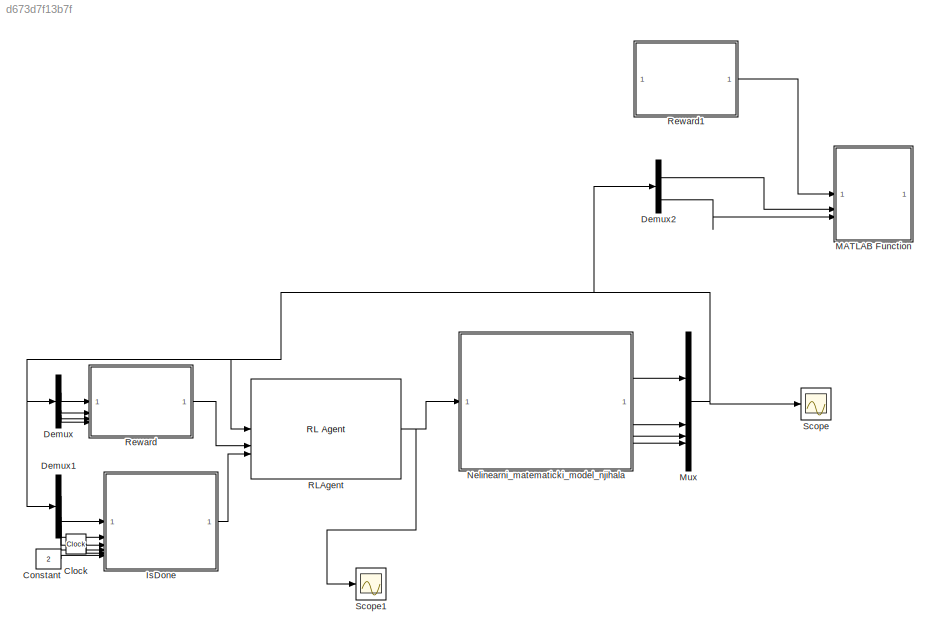
MODEL slx_d673d7f13b7f
KIND model
CONFIG AbsTol = auto
CONFIG EnableMultiTasking = off
CONFIG FixedStep = 0.001
CONFIG MaxStep = 0.01
CONFIG MinStep = auto
CONFIG RelTol = 1e-3
CONFIG SampleTimeConstraint = Unconstrained
CONFIG SolverName = FixedStepAuto
CONFIG StartTime = 0.0
CONFIG StopTime = 15
BLOCK [Clock] Clock
BLOCK [Constant] Constant
  Value = 2
BLOCK [Demux] Demux
BLOCK [Demux] Demux1
BLOCK [Demux] Demux2
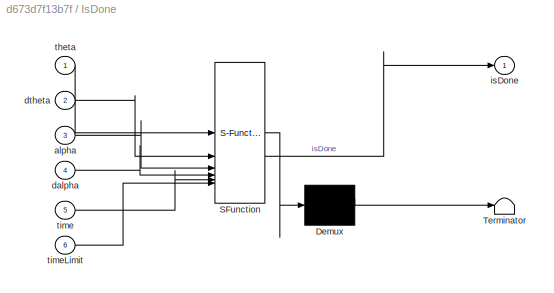
BLOCK [SubSystem] IsDone
  ErrorFcn = Stateflow.Translate.translate
  LibrarySourceBlock = simulink/User-Defined\nFunctions/MATLAB Function
  PermitHierarchicalResolution = ExplicitOnly
  SFBlockType = MATLAB Function
  TreatAsAtomicUnit = on
BLOCK [Demux] IsDone/ Demux 
  Outputs = 1
BLOCK [S-Function] IsDone/ SFunction 
  EnableBusSupport = on
  FunctionName = sf_sfun
  PortCounts = [6 2]
  SFcnIsStateOwnerBlock = off
  SFunctionDeploymentMode = off
  Tag = Stateflow S-Function 1
BLOCK [Terminator] IsDone/ Terminator 
BLOCK [Inport] IsDone/alpha
  Port = 3
BLOCK [Inport] IsDone/dalpha
  Port = 4
BLOCK [Inport] IsDone/dtheta
  Port = 2
BLOCK [Outport] IsDone/isDone
BLOCK [Inport] IsDone/theta
BLOCK [Inport] IsDone/time
  Port = 5
BLOCK [Inport] IsDone/timeLimit
  Port = 6
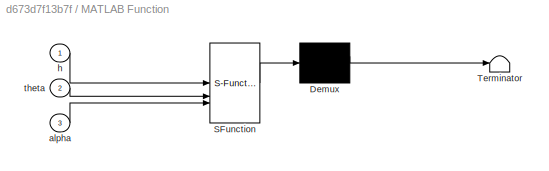
BLOCK [SubSystem] MATLAB Function
  ErrorFcn = Stateflow.Translate.translate
  PermitHierarchicalResolution = ExplicitOnly
  SFBlockType = MATLAB Function
  TreatAsAtomicUnit = on
BLOCK [Demux] MATLAB Function/ Demux 
  Outputs = 1
BLOCK [S-Function] MATLAB Function/ SFunction 
  EnableBusSupport = on
  FunctionName = sf_sfun
  PortCounts = [3 1]
  SFcnIsStateOwnerBlock = off
  SFunctionDeploymentMode = off
  Tag = Stateflow S-Function 3
BLOCK [Terminator] MATLAB Function/ Terminator 
BLOCK [Inport] MATLAB Function/alpha
  Port = 3
BLOCK [Inport] MATLAB Function/h
BLOCK [Inport] MATLAB Function/theta
  Port = 2
BLOCK [Mux] Mux
  DisplayOption = bar
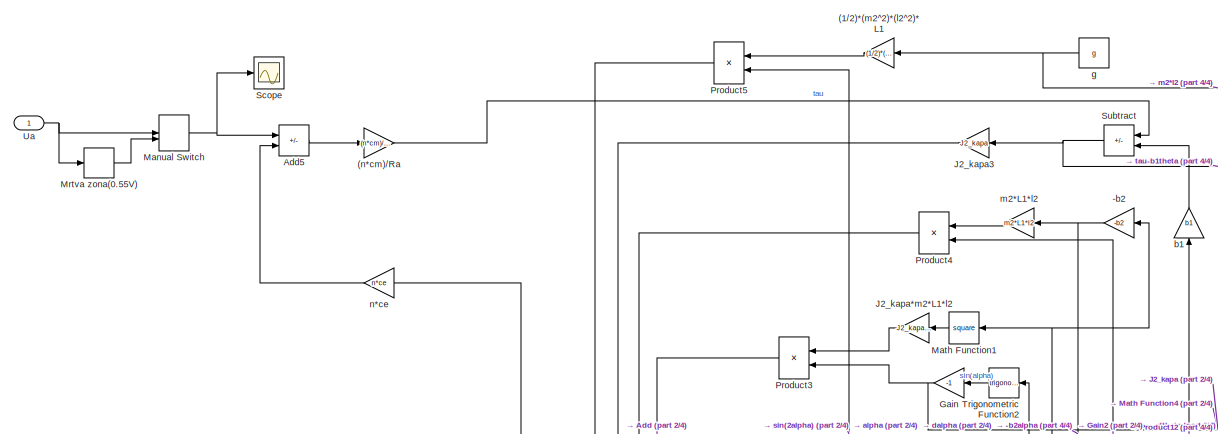
[diagram: Nelinearni_matematicki_model_njihala - part 1/4, top left region]
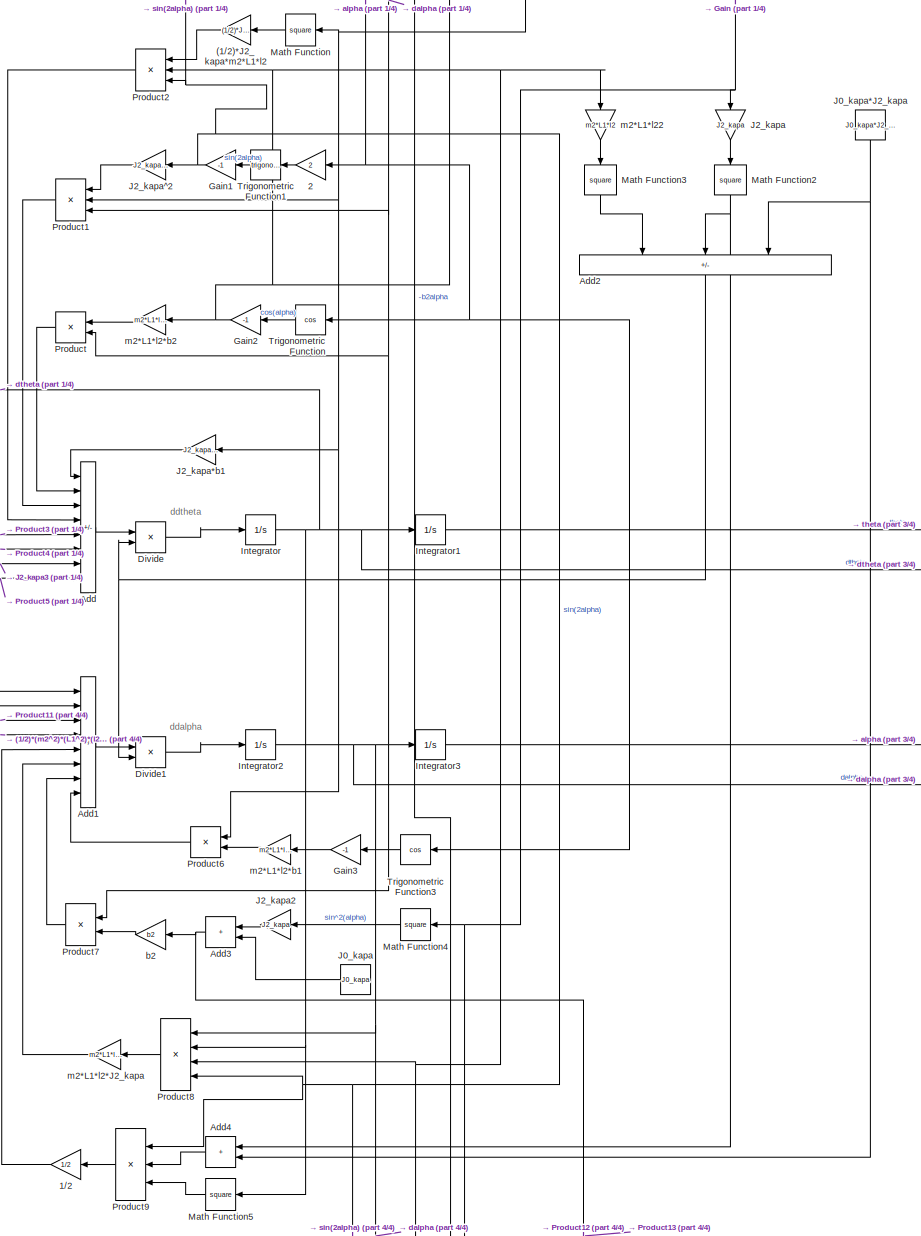
[diagram: Nelinearni_matematicki_model_njihala - part 2/4, central region]
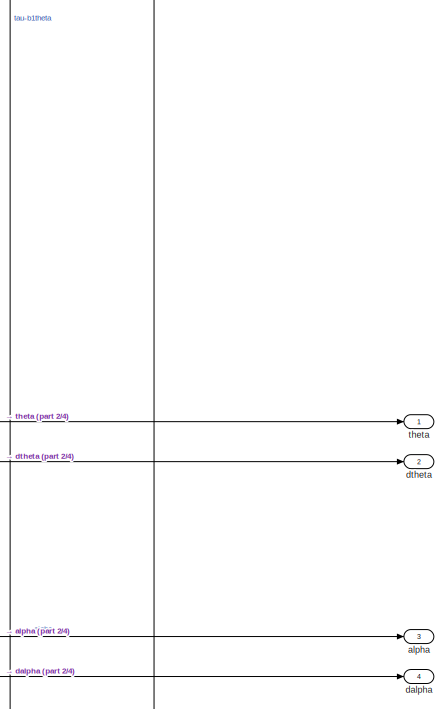
[diagram: Nelinearni_matematicki_model_njihala - part 3/4, middle right region]
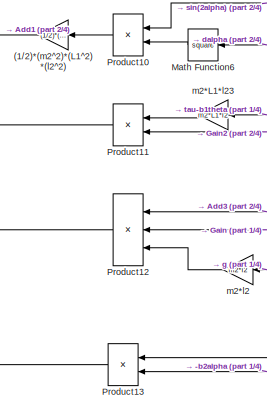
[diagram: Nelinearni_matematicki_model_njihala - part 4/4, bottom center region]
BLOCK [SubSystem] Nelinearni_matematicki_model_njihala
BLOCK [Gain] Nelinearni_matematicki_model_njihala/(1//2)*(m2^2)*(L1^2)*(l2^2)
  Gain = (1/2)*(m2^2)*(L1^2)*(l2^2)
  NameLocation = top
BLOCK [Gain] Nelinearni_matematicki_model_njihala/(1//2)*(m2^2)*(l2^2)*L1
  Gain = (1/2)*(m2^2)*(l2^2)*L1
  NameLocation = top
BLOCK [Gain] Nelinearni_matematicki_model_njihala/(1//2)*J2_kapa*m2*L1*l2
  Gain = (1/2)*J2_kapa*m2*L1*l2
  NameLocation = top
BLOCK [Gain] Nelinearni_matematicki_model_njihala/(n*cm)//Ra
  Gain = (n*cm)/Ra
BLOCK [Gain] Nelinearni_matematicki_model_njihala/-b2
  Gain = -b2
  NameLocation = top
BLOCK [Gain] Nelinearni_matematicki_model_njihala/1//2
  Gain = 1/2
  NameLocation = top
BLOCK [Gain] Nelinearni_matematicki_model_njihala/2
  Gain = 2
  NameLocation = top
BLOCK [Sum] Nelinearni_matematicki_model_njihala/Add
  IconShape = rectangular
  Inputs = -+--+-+-
BLOCK [Sum] Nelinearni_matematicki_model_njihala/Add1
  IconShape = rectangular
  Inputs = -+---+-+
BLOCK [Sum] Nelinearni_matematicki_model_njihala/Add2
  IconShape = rectangular
  Inputs = -++
  NameLocation = left
BLOCK [Sum] Nelinearni_matematicki_model_njihala/Add3
  IconShape = rectangular
  NameLocation = top
BLOCK [Sum] Nelinearni_matematicki_model_njihala/Add4
  IconShape = rectangular
  NameLocation = top
BLOCK [Sum] Nelinearni_matematicki_model_njihala/Add5
  IconShape = rectangular
  Inputs = +-
BLOCK [Product] Nelinearni_matematicki_model_njihala/Divide
  Inputs = */
BLOCK [Product] Nelinearni_matematicki_model_njihala/Divide1
  Inputs = */
BLOCK [Gain] Nelinearni_matematicki_model_njihala/Gain
  Gain = -1
  NameLocation = top
BLOCK [Gain] Nelinearni_matematicki_model_njihala/Gain1
  Gain = -1
  NameLocation = top
BLOCK [Gain] Nelinearni_matematicki_model_njihala/Gain2
  Gain = -1
  NameLocation = top
BLOCK [Gain] Nelinearni_matematicki_model_njihala/Gain3
  Gain = -1
  NameLocation = top
BLOCK [Integrator] Nelinearni_matematicki_model_njihala/Integrator
BLOCK [Integrator] Nelinearni_matematicki_model_njihala/Integrator1
BLOCK [Integrator] Nelinearni_matematicki_model_njihala/Integrator2
BLOCK [Integrator] Nelinearni_matematicki_model_njihala/Integrator3
  InitialCondition = pi/16
BLOCK [Constant] Nelinearni_matematicki_model_njihala/J0_kapa
  NameLocation = top
  Value = J0_kapa
BLOCK [Constant] Nelinearni_matematicki_model_njihala/J0_kapa*J2_kapa
  NameLocation = left
  Value = J0_kapa*J2_kapa
BLOCK [Gain] Nelinearni_matematicki_model_njihala/J2_kapa
  Gain = J2_kapa
  NameLocation = left
BLOCK [Gain] Nelinearni_matematicki_model_njihala/J2_kapa*b1
  Gain = J2_kapa*b1
  NameLocation = top
BLOCK [Gain] Nelinearni_matematicki_model_njihala/J2_kapa*m2*L1*l2
  Gain = J2_kapa*m2*L1*l2
  NameLocation = top
BLOCK [Gain] Nelinearni_matematicki_model_njihala/J2_kapa2
  Gain = J2_kapa
  NameLocation = top
BLOCK [Gain] Nelinearni_matematicki_model_njihala/J2_kapa3
  Gain = J2_kapa
  NameLocation = top
BLOCK [Gain] Nelinearni_matematicki_model_njihala/J2_kapa^2
  Gain = J2_kapa^2
  NameLocation = top
BLOCK [ManualSwitch] Nelinearni_matematicki_model_njihala/Manual Switch
BLOCK [Math] Nelinearni_matematicki_model_njihala/Math Function
  NameLocation = top
  Operator = square
BLOCK [Math] Nelinearni_matematicki_model_njihala/Math Function1
  NameLocation = top
  Operator = square
BLOCK [Math] Nelinearni_matematicki_model_njihala/Math Function2
  NameLocation = left
  Operator = square
BLOCK [Math] Nelinearni_matematicki_model_njihala/Math Function3
  NameLocation = left
  Operator = square
BLOCK [Math] Nelinearni_matematicki_model_njihala/Math Function4
  NameLocation = top
  Operator = square
BLOCK [Math] Nelinearni_matematicki_model_njihala/Math Function5
  NameLocation = top
  Operator = square
BLOCK [Math] Nelinearni_matematicki_model_njihala/Math Function6
  NameLocation = top
  Operator = square
BLOCK [DeadZone] Nelinearni_matematicki_model_njihala/Mrtva zona(0.55V)
  LowerValue = -0.55
  UpperValue = 0.55
BLOCK [Product] Nelinearni_matematicki_model_njihala/Product
  NameLocation = top
BLOCK [Product] Nelinearni_matematicki_model_njihala/Product1
  Inputs = 3
  NameLocation = top
BLOCK [Product] Nelinearni_matematicki_model_njihala/Product10
  NameLocation = top
BLOCK [Product] Nelinearni_matematicki_model_njihala/Product11
  NameLocation = top
BLOCK [Product] Nelinearni_matematicki_model_njihala/Product12
  Inputs = 3
  NameLocation = top
BLOCK [Product] Nelinearni_matematicki_model_njihala/Product13
  NameLocation = top
BLOCK [Product] Nelinearni_matematicki_model_njihala/Product2
  Inputs = 3
  NameLocation = top
BLOCK [Product] Nelinearni_matematicki_model_njihala/Product3
  NameLocation = top
BLOCK [Product] Nelinearni_matematicki_model_njihala/Product4
  NameLocation = top
BLOCK [Product] Nelinearni_matematicki_model_njihala/Product5
  NameLocation = top
BLOCK [Product] Nelinearni_matematicki_model_njihala/Product6
  NameLocation = top
BLOCK [Product] Nelinearni_matematicki_model_njihala/Product7
  NameLocation = top
BLOCK [Product] Nelinearni_matematicki_model_njihala/Product8
  Inputs = 4
  NameLocation = top
BLOCK [Product] Nelinearni_matematicki_model_njihala/Product9
  Inputs = 3
  NameLocation = top
BLOCK [Scope] Nelinearni_matematicki_model_njihala/Scope
  Floating = off
  NumInputPorts = 1
  ScopeSpecificationString = Simulink.scopes.TimeScopeBlockCfg('CurrentConfiguration', extmgr.ConfigurationSet(extmgr.Configuration('Core','General UI',true),extmgr.Configuration('Core','Source UI',true),extmgr.Configuration('Sources','WiredSimulink',true,'DataLoggingVariableName','ScopeData6'),extmgr.Configuration('Visuals','Time Domain',true,'SerializedDisplays',{struct('MinYLimReal','-4.13806','MaxYLimReal','1.14753','YLab...<+1372ch>
BLOCK [Sum] Nelinearni_matematicki_model_njihala/Subtract
  IconShape = rectangular
  Inputs = +-
  NameLocation = top
BLOCK [Trigonometry] Nelinearni_matematicki_model_njihala/Trigonometric Function
  NameLocation = top
  Operator = cos
BLOCK [Trigonometry] Nelinearni_matematicki_model_njihala/Trigonometric Function1
  NameLocation = top
BLOCK [Trigonometry] Nelinearni_matematicki_model_njihala/Trigonometric Function2
  NameLocation = top
BLOCK [Trigonometry] Nelinearni_matematicki_model_njihala/Trigonometric Function3
  NameLocation = top
  Operator = cos
BLOCK [Inport] Nelinearni_matematicki_model_njihala/Ua
BLOCK [Outport] Nelinearni_matematicki_model_njihala/alpha
  Port = 3
BLOCK [Gain] Nelinearni_matematicki_model_njihala/b1
  Gain = b1
  NameLocation = right
BLOCK [Gain] Nelinearni_matematicki_model_njihala/b2
  Gain = b2
  NameLocation = top
BLOCK [Outport] Nelinearni_matematicki_model_njihala/dalpha
  Port = 4
BLOCK [Outport] Nelinearni_matematicki_model_njihala/dtheta
  Port = 2
BLOCK [Constant] Nelinearni_matematicki_model_njihala/g
  NameLocation = top
  Value = g
BLOCK [Gain] Nelinearni_matematicki_model_njihala/m2*L1*l2
  Gain = m2*L1*l2
  NameLocation = top
BLOCK [Gain] Nelinearni_matematicki_model_njihala/m2*L1*l2*J2_kapa
  Gain = m2*L1*l2*J2_kapa
  NameLocation = top
BLOCK [Gain] Nelinearni_matematicki_model_njihala/m2*L1*l2*b1
  Gain = m2*L1*l2*b1
  NameLocation = top
BLOCK [Gain] Nelinearni_matematicki_model_njihala/m2*L1*l2*b2
  Gain = m2*L1*l2*b2
  NameLocation = top
BLOCK [Gain] Nelinearni_matematicki_model_njihala/m2*L1*l22
  Gain = m2*L1*l2
  NameLocation = left
BLOCK [Gain] Nelinearni_matematicki_model_njihala/m2*L1*l23
  Gain = m2*L1*l2
  NameLocation = top
BLOCK [Gain] Nelinearni_matematicki_model_njihala/m2*l2
  Gain = m2*l2
  NameLocation = top
BLOCK [Gain] Nelinearni_matematicki_model_njihala/n*ce
  Gain = n*ce
  NameLocation = top
BLOCK [Outport] Nelinearni_matematicki_model_njihala/theta
BLOCK [Reference] RLAgent  REF=rllib/RL Agent
  SourceBlock = rllib/RL Agent
  SourceType = RL Agent
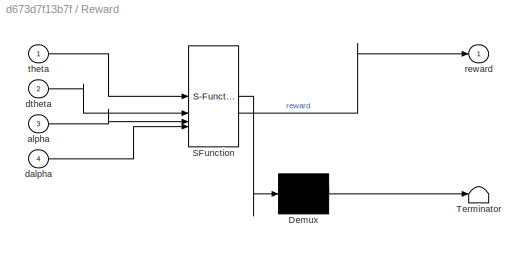
BLOCK [SubSystem] Reward
  ErrorFcn = Stateflow.Translate.translate
  LibrarySourceBlock = simulink/User-Defined\nFunctions/MATLAB Function
  PermitHierarchicalResolution = ExplicitOnly
  SFBlockType = MATLAB Function
  TreatAsAtomicUnit = on
BLOCK [Demux] Reward/ Demux 
  Outputs = 1
BLOCK [S-Function] Reward/ SFunction 
  EnableBusSupport = on
  FunctionName = sf_sfun
  PortCounts = [4 2]
  SFcnIsStateOwnerBlock = off
  SFunctionDeploymentMode = off
  Tag = Stateflow S-Function 2
BLOCK [Terminator] Reward/ Terminator 
BLOCK [Inport] Reward/alpha
  Port = 3
BLOCK [Inport] Reward/dalpha
  Port = 4
BLOCK [Inport] Reward/dtheta
  Port = 2
BLOCK [Outport] Reward/reward
BLOCK [Inport] Reward/theta
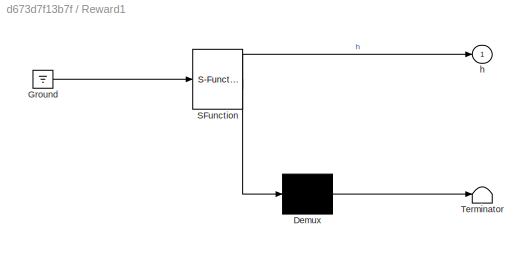
BLOCK [SubSystem] Reward1
  ErrorFcn = Stateflow.Translate.translate
  LibrarySourceBlock = simulink/User-Defined\nFunctions/MATLAB Function
  PermitHierarchicalResolution = ExplicitOnly
  SFBlockType = MATLAB Function
  TreatAsAtomicUnit = on
BLOCK [Demux] Reward1/ Demux 
  Outputs = 1
BLOCK [Ground] Reward1/ Ground 
BLOCK [S-Function] Reward1/ SFunction 
  EnableBusSupport = on
  FunctionName = sf_sfun
  PortCounts = [1 2]
  SFcnIsStateOwnerBlock = off
  SFunctionDeploymentMode = off
  Tag = Stateflow S-Function 4
BLOCK [Terminator] Reward1/ Terminator 
BLOCK [Outport] Reward1/h
BLOCK [Scope] Scope
  Floating = off
  NumInputPorts = 1
  ScopeSpecificationString = Simulink.scopes.TimeScopeBlockCfg('CurrentConfiguration', extmgr.ConfigurationSet(extmgr.Configuration('Core','General UI',true),extmgr.Configuration('Core','Source UI',true),extmgr.Configuration('Sources','WiredSimulink',true,'DataLoggingVariableName','ScopeData1'),extmgr.Configuration('Visuals','Time Domain',true,'SerializedDisplays',{struct('MinYLimReal','-6.53027','MaxYLimReal','14.04534','YLa...<+1575ch>
BLOCK [Scope] Scope1
  Floating = off
  NumInputPorts = 1
  ScopeSpecificationString = Simulink.scopes.TimeScopeBlockCfg('CurrentConfiguration', extmgr.ConfigurationSet(extmgr.Configuration('Core','General UI',true),extmgr.Configuration('Core','Source UI',true),extmgr.Configuration('Sources','WiredSimulink',true,'DataLoggingVariableName','ScopeData1'),extmgr.Configuration('Visuals','Time Domain',true,'SerializedDisplays',{struct('MinYLimReal','-0.49761','MaxYLimReal','0.78018','YLab...<+1392ch>
ANNOTATION Nelinearni_matematicki_model_njihala: ddalpha
ANNOTATION Nelinearni_matematicki_model_njihala: ddtheta
LINE Clock:1 -> IsDone:5
LINE Constant:1 -> IsDone:6
LINE Demux1:1 -> IsDone:1
LINE Demux1:2 -> IsDone:2
LINE Demux1:3 -> IsDone:3
LINE Demux1:4 -> IsDone:4
LINE Demux2:1 -> MATLAB Function:2
LINE Demux2:3 -> MATLAB Function:3
LINE Demux:1 -> Reward:1
LINE Demux:2 -> Reward:2
LINE Demux:3 -> Reward:3
LINE Demux:4 -> Reward:4
LINE IsDone:1 -> RLAgent:3
NET Mux:1 -> Demux1:1, Demux2:1, Demux:1, RLAgent:1, Scope:1
LINE Nelinearni_matematicki_model_njihala/(1//2)*(m2^2)*(L1^2)*(l2^2):1 -> Nelinearni_matematicki_model_njihala/Add1:4
LINE Nelinearni_matematicki_model_njihala/(1//2)*(m2^2)*(l2^2)*L1:1 -> Nelinearni_matematicki_model_njihala/Product5:1
LINE Nelinearni_matematicki_model_njihala/(1//2)*J2_kapa*m2*L1*l2:1 -> Nelinearni_matematicki_model_njihala/Product2:1
LINE Nelinearni_matematicki_model_njihala/(n*cm)//Ra:1 -> Nelinearni_matematicki_model_njihala/Subtract:1
NET Nelinearni_matematicki_model_njihala/-b2:1 -> Nelinearni_matematicki_model_njihala/Product13:2, Nelinearni_matematicki_model_njihala/m2*L1*l2:1
LINE Nelinearni_matematicki_model_njihala/1//2:1 -> Nelinearni_matematicki_model_njihala/Add1:5
LINE Nelinearni_matematicki_model_njihala/2:1 -> Nelinearni_matematicki_model_njihala/Trigonometric Function1:1
LINE Nelinearni_matematicki_model_njihala/Add1:1 -> Nelinearni_matematicki_model_njihala/Divide1:1
NET Nelinearni_matematicki_model_njihala/Add2:1 -> Nelinearni_matematicki_model_njihala/Divide1:2, Nelinearni_matematicki_model_njihala/Divide:2
NET Nelinearni_matematicki_model_njihala/Add3:1 -> Nelinearni_matematicki_model_njihala/Product12:1, Nelinearni_matematicki_model_njihala/Product13:1, Nelinearni_matematicki_model_njihala/b2:1
LINE Nelinearni_matematicki_model_njihala/Add4:1 -> Nelinearni_matematicki_model_njihala/Product9:2
LINE Nelinearni_matematicki_model_njihala/Add5:1 -> Nelinearni_matematicki_model_njihala/(n*cm)//Ra:1
LINE Nelinearni_matematicki_model_njihala/Add:1 -> Nelinearni_matematicki_model_njihala/Divide:1
LINE Nelinearni_matematicki_model_njihala/Divide1:1 -> Nelinearni_matematicki_model_njihala/Integrator2:1
LINE Nelinearni_matematicki_model_njihala/Divide:1 -> Nelinearni_matematicki_model_njihala/Integrator:1
NET Nelinearni_matematicki_model_njihala/Gain1:1 -> Nelinearni_matematicki_model_njihala/J2_kapa^2:1, Nelinearni_matematicki_model_njihala/Product10:1, Nelinearni_matematicki_model_njihala/Product2:3, Nelinearni_matematicki_model_njihala/Product5:2, Nelinearni_matematicki_model_njihala/Product8:4, Nelinearni_matematicki_model_njihala/Product9:1
NET Nelinearni_matematicki_model_njihala/Gain2:1 -> Nelinearni_matematicki_model_njihala/Product11:2, Nelinearni_matematicki_model_njihala/Product2:2, Nelinearni_matematicki_model_njihala/Product4:2, Nelinearni_matematicki_model_njihala/Product8:3, Nelinearni_matematicki_model_njihala/m2*L1*l2*b2:1, Nelinearni_matematicki_model_njihala/m2*L1*l22:1
LINE Nelinearni_matematicki_model_njihala/Gain3:1 -> Nelinearni_matematicki_model_njihala/m2*L1*l2*b1:1
NET Nelinearni_matematicki_model_njihala/Gain:1 -> Nelinearni_matematicki_model_njihala/J2_kapa:1, Nelinearni_matematicki_model_njihala/Math Function4:1, Nelinearni_matematicki_model_njihala/Product12:2, Nelinearni_matematicki_model_njihala/Product3:2
LINE Nelinearni_matematicki_model_njihala/Integrator1:1 -> Nelinearni_matematicki_model_njihala/theta:1
NET Nelinearni_matematicki_model_njihala/Integrator2:1 -> Nelinearni_matematicki_model_njihala/-b2:1, Nelinearni_matematicki_model_njihala/Integrator3:1, Nelinearni_matematicki_model_njihala/Math Function1:1, Nelinearni_matematicki_model_njihala/Math Function6:1, Nelinearni_matematicki_model_njihala/Product1:3, Nelinearni_matematicki_model_njihala/Product7:1, Nelinearni_matematicki_model_njihala/Product8:1, Nelinearni_matematicki_model_njihala/Product:2, Nelinearni_matematicki_model_njihala/dalpha:1
NET Nelinearni_matematicki_model_njihala/Integrator3:1 -> Nelinearni_matematicki_model_njihala/2:1, Nelinearni_matematicki_model_njihala/Trigonometric Function2:1, Nelinearni_matematicki_model_njihala/Trigonometric Function3:1, Nelinearni_matematicki_model_njihala/Trigonometric Function:1, Nelinearni_matematicki_model_njihala/alpha:1
NET Nelinearni_matematicki_model_njihala/Integrator:1 -> Nelinearni_matematicki_model_njihala/Integrator1:1, Nelinearni_matematicki_model_njihala/J2_kapa*b1:1, Nelinearni_matematicki_model_njihala/Math Function5:1, Nelinearni_matematicki_model_njihala/Math Function:1, Nelinearni_matematicki_model_njihala/Product1:2, Nelinearni_matematicki_model_njihala/Product6:1, Nelinearni_matematicki_model_njihala/Product8:2, Nelinearni_matematicki_model_njihala/b1:1, Nelinearni_matematicki_model_njihala/dtheta:1, Nelinearni_matematicki_model_njihala/n*ce:1
NET Nelinearni_matematicki_model_njihala/J0_kapa*J2_kapa:1 -> Nelinearni_matematicki_model_njihala/Add2:3, Nelinearni_matematicki_model_njihala/Add4:2
LINE Nelinearni_matematicki_model_njihala/J0_kapa:1 -> Nelinearni_matematicki_model_njihala/Add3:2
LINE Nelinearni_matematicki_model_njihala/J2_kapa*b1:1 -> Nelinearni_matematicki_model_njihala/Add:1
LINE Nelinearni_matematicki_model_njihala/J2_kapa*m2*L1*l2:1 -> Nelinearni_matematicki_model_njihala/Product3:1
LINE Nelinearni_matematicki_model_njihala/J2_kapa2:1 -> Nelinearni_matematicki_model_njihala/Add3:1
LINE Nelinearni_matematicki_model_njihala/J2_kapa3:1 -> Nelinearni_matematicki_model_njihala/Add:7
LINE Nelinearni_matematicki_model_njihala/J2_kapa:1 -> Nelinearni_matematicki_model_njihala/Math Function2:1
LINE Nelinearni_matematicki_model_njihala/J2_kapa^2:1 -> Nelinearni_matematicki_model_njihala/Product1:1
NET Nelinearni_matematicki_model_njihala/Manual Switch:1 -> Nelinearni_matematicki_model_njihala/Add5:1, Nelinearni_matematicki_model_njihala/Scope:1
LINE Nelinearni_matematicki_model_njihala/Math Function1:1 -> Nelinearni_matematicki_model_njihala/J2_kapa*m2*L1*l2:1
NET Nelinearni_matematicki_model_njihala/Math Function2:1 -> Nelinearni_matematicki_model_njihala/Add2:2, Nelinearni_matematicki_model_njihala/Add4:1
LINE Nelinearni_matematicki_model_njihala/Math Function3:1 -> Nelinearni_matematicki_model_njihala/Add2:1
LINE Nelinearni_matematicki_model_njihala/Math Function4:1 -> Nelinearni_matematicki_model_njihala/J2_kapa2:1
LINE Nelinearni_matematicki_model_njihala/Math Function5:1 -> Nelinearni_matematicki_model_njihala/Product9:3
LINE Nelinearni_matematicki_model_njihala/Math Function6:1 -> Nelinearni_matematicki_model_njihala/Product10:2
LINE Nelinearni_matematicki_model_njihala/Math Function:1 -> Nelinearni_matematicki_model_njihala/(1//2)*J2_kapa*m2*L1*l2:1
LINE Nelinearni_matematicki_model_njihala/Mrtva zona(0.55V):1 -> Nelinearni_matematicki_model_njihala/Manual Switch:2
LINE Nelinearni_matematicki_model_njihala/Product10:1 -> Nelinearni_matematicki_model_njihala/(1//2)*(m2^2)*(L1^2)*(l2^2):1
LINE Nelinearni_matematicki_model_njihala/Product11:1 -> Nelinearni_matematicki_model_njihala/Add1:3
LINE Nelinearni_matematicki_model_njihala/Product12:1 -> Nelinearni_matematicki_model_njihala/Add1:1
LINE Nelinearni_matematicki_model_njihala/Product13:1 -> Nelinearni_matematicki_model_njihala/Add1:2
LINE Nelinearni_matematicki_model_njihala/Product1:1 -> Nelinearni_matematicki_model_njihala/Add:3
LINE Nelinearni_matematicki_model_njihala/Product2:1 -> Nelinearni_matematicki_model_njihala/Add:4
LINE Nelinearni_matematicki_model_njihala/Product3:1 -> Nelinearni_matematicki_model_njihala/Add:5
LINE Nelinearni_matematicki_model_njihala/Product4:1 -> Nelinearni_matematicki_model_njihala/Add:6
LINE Nelinearni_matematicki_model_njihala/Product5:1 -> Nelinearni_matematicki_model_njihala/Add:8
LINE Nelinearni_matematicki_model_njihala/Product6:1 -> Nelinearni_matematicki_model_njihala/Add1:8
LINE Nelinearni_matematicki_model_njihala/Product7:1 -> Nelinearni_matematicki_model_njihala/Add1:7
LINE Nelinearni_matematicki_model_njihala/Product8:1 -> Nelinearni_matematicki_model_njihala/m2*L1*l2*J2_kapa:1
LINE Nelinearni_matematicki_model_njihala/Product9:1 -> Nelinearni_matematicki_model_njihala/1//2:1
LINE Nelinearni_matematicki_model_njihala/Product:1 -> Nelinearni_matematicki_model_njihala/Add:2
NET Nelinearni_matematicki_model_njihala/Subtract:1 -> Nelinearni_matematicki_model_njihala/J2_kapa3:1, Nelinearni_matematicki_model_njihala/m2*L1*l23:1
LINE Nelinearni_matematicki_model_njihala/Trigonometric Function1:1 -> Nelinearni_matematicki_model_njihala/Gain1:1
LINE Nelinearni_matematicki_model_njihala/Trigonometric Function2:1 -> Nelinearni_matematicki_model_njihala/Gain:1
LINE Nelinearni_matematicki_model_njihala/Trigonometric Function3:1 -> Nelinearni_matematicki_model_njihala/Gain3:1
LINE Nelinearni_matematicki_model_njihala/Trigonometric Function:1 -> Nelinearni_matematicki_model_njihala/Gain2:1
NET Nelinearni_matematicki_model_njihala/Ua:1 -> Nelinearni_matematicki_model_njihala/Manual Switch:1, Nelinearni_matematicki_model_njihala/Mrtva zona(0.55V):1
LINE Nelinearni_matematicki_model_njihala/b1:1 -> Nelinearni_matematicki_model_njihala/Subtract:2
LINE Nelinearni_matematicki_model_njihala/b2:1 -> Nelinearni_matematicki_model_njihala/Product7:2
NET Nelinearni_matematicki_model_njihala/g:1 -> Nelinearni_matematicki_model_njihala/(1//2)*(m2^2)*(l2^2)*L1:1, Nelinearni_matematicki_model_njihala/m2*l2:1
LINE Nelinearni_matematicki_model_njihala/m2*L1*l2*J2_kapa:1 -> Nelinearni_matematicki_model_njihala/Add1:6
LINE Nelinearni_matematicki_model_njihala/m2*L1*l2*b1:1 -> Nelinearni_matematicki_model_njihala/Product6:2
LINE Nelinearni_matematicki_model_njihala/m2*L1*l2*b2:1 -> Nelinearni_matematicki_model_njihala/Product:1
LINE Nelinearni_matematicki_model_njihala/m2*L1*l22:1 -> Nelinearni_matematicki_model_njihala/Math Function3:1
LINE Nelinearni_matematicki_model_njihala/m2*L1*l23:1 -> Nelinearni_matematicki_model_njihala/Product11:1
LINE Nelinearni_matematicki_model_njihala/m2*L1*l2:1 -> Nelinearni_matematicki_model_njihala/Product4:1
LINE Nelinearni_matematicki_model_njihala/m2*l2:1 -> Nelinearni_matematicki_model_njihala/Product12:3
LINE Nelinearni_matematicki_model_njihala/n*ce:1 -> Nelinearni_matematicki_model_njihala/Add5:2
LINE Nelinearni_matematicki_model_njihala:1 -> Mux:1
LINE Nelinearni_matematicki_model_njihala:2 -> Mux:2
LINE Nelinearni_matematicki_model_njihala:3 -> Mux:3
LINE Nelinearni_matematicki_model_njihala:4 -> Mux:4
NET RLAgent:1 -> Nelinearni_matematicki_model_njihala:1, Scope1:1
LINE Reward1:1 -> MATLAB Function:1
LINE Reward:1 -> RLAgent:2
note: NET lines group one-source signal fan-out (src -> all destinations, sorted); 1:1 wires keep LINE
CHART IsDone states=1 transitions=1
  STATE_LABEL 'eML_blk_kernel()'
  STATE_LABEL 'SCRIPT:\nfunction isDone = checkIsDone(theta, dtheta, alpha, dalpha, time, timeLimit)\n% provjerava uvjet završetka na temelju trenutnog stanja i vremena\n\n% Završava epizodu ako pendulum padne (theta premašuje granicu)\n% ili ako se dostigne vremenski limit\nsomeLimit = 0.1;\nisDone = abs(theta) > someLimit && time >= timeLimit;\nend\n'
CHART Reward states=1 transitions=1
  STATE_LABEL 'eML_blk_kernel()'
  STATE_LABEL 'SCRIPT:\nfunction reward = calculateReward(theta, dtheta, alpha, dalpha)\n% izračunava nagradu na temelju trenutnog stanja\n\n% Nagrada je visoka kada je theta mala (pendulum blizu uspravnog položaja)\n% i niska kada je theta velika (pendulum daleko od uspravnog položaja)\nreward = abs(theta) ;\nend\n'
CHART MATLAB Function states=1 transitions=1
  STATE_LABEL 'eML_blk_kernel()'
  STATE_LABEL 'SCRIPT:\nfunction stepFcn(h,theta, alpha)\n    \n    % Call the updateRotatingPend function\n    updateRotatingPend(h, theta, alpha);\nend\n\nfunction updateRotatingPend(h, theta, alpha)\n    % Length of the pendulum and hand (change to your values)\n    L_hand = 1;\n    L_pend = 1;  \n\n    % Position of the hand\n    x_hand = L_hand * cos(theta);\n    y_hand = L_hand * sin(theta);\n\n    % Position of the pendu...<+407ch>'
CHART Reward1 states=1 transitions=1
  STATE_LABEL 'eML_blk_kernel()'
  STATE_LABEL "SCRIPT:\nfunction h = fcn()\n    persistent hVar;\n    if isempty(hVar)\n        hVar = initRotatingPend();\n    end\n    h = hVar;\nend\n\nfunction h = initRotatingPend()\n    % Length of the pendulum and hand (change to your values)\n    L_hand = 1;\n    L_pend = 1;\n\n    % Create the plot objects\n    h.hand = line([0, 0], [0, 0], 'Color', 'k', 'LineWidth', 2);\n    h.pend = line([0, 0], [0, 0], 'Color', 'b',...<+440ch>"
CHART  states=0 transitions=0
CHART  states=0 transitions=0
CHART  states=0 transitions=0
CHART  states=0 transitions=0
